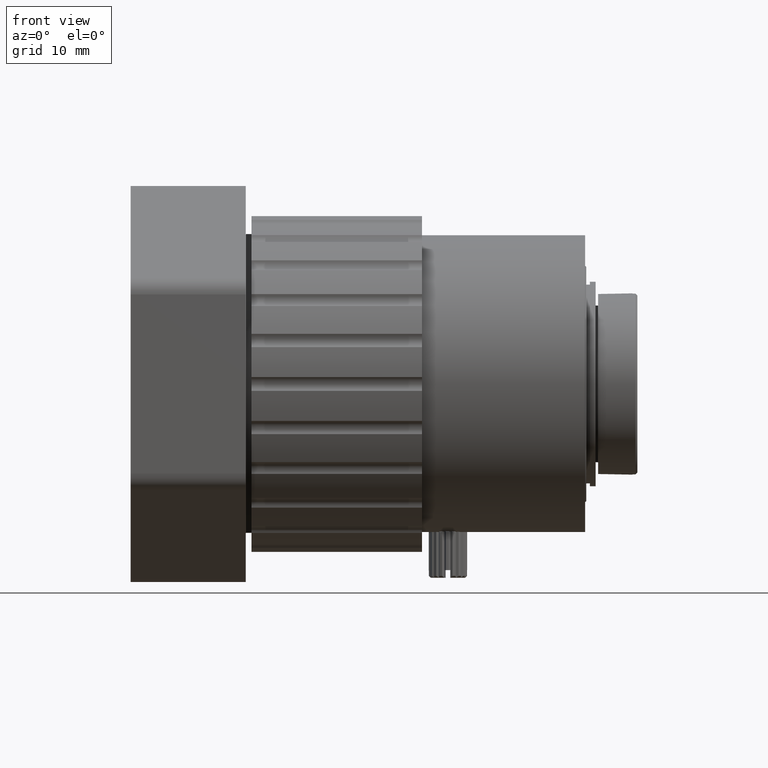
[diagram: clean part render]
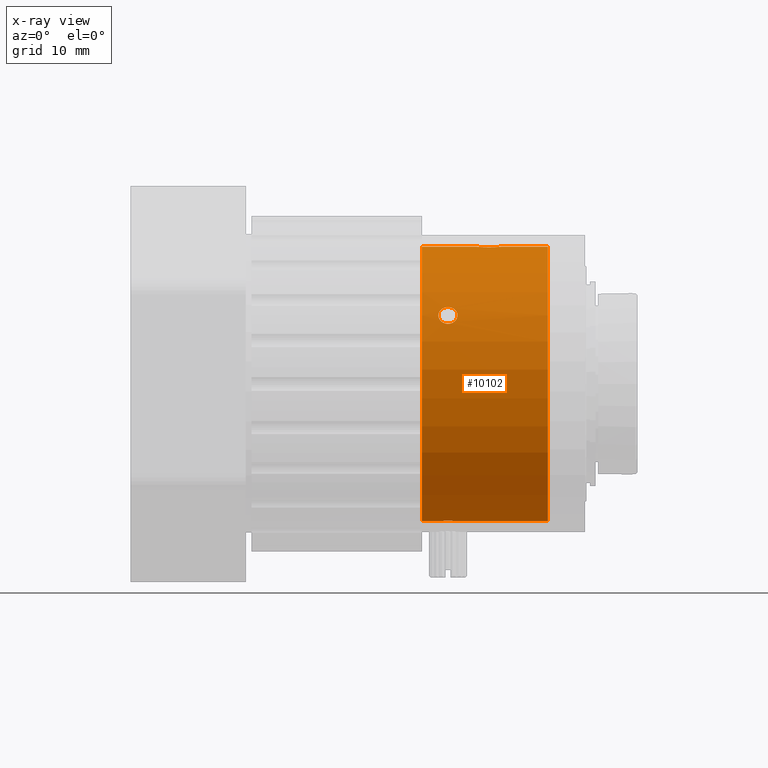
[diagram: x-ray — body ghosted, one internal face saturated and labeled with its STEP entity id]
A machine part, front view, then the same camera in x-ray: the body is ghosted and one INTERNAL B-rep face — a face not visible from any outside direction — is saturated and labeled: STEP entity #10102.
In plain terms, the highlighted cylindrical surface (bore or boss wall) has radius 14.3 mm, axis along (1, -0, -0).
Its self-contained STEP definition (entity closure, byte-faithful):
#196 = DIRECTION ( 'NONE',  ( -1.000000000000000000, 0.000000000000000000, 0.000000000000000000 ) ) ;
#258 = CARTESIAN_POINT ( 'NONE',  ( 5.379468277203178772, -13.16884385282026670, 6.923156298813247567 ) ) ;
#328 = CARTESIAN_POINT ( 'NONE',  ( 5.204576035844993953, -12.72139867896818721, 7.676032751049668867 ) ) ;
#428 = CARTESIAN_POINT ( 'NONE',  ( 3.901234527884420267, 11.26844547094540339, 7.893239898439635027 ) ) ;
#479 = CARTESIAN_POINT ( 'NONE',  ( 3.431012687136103523, -12.90798527395345729, 7.374976602162581329 ) ) ;
#496 = CARTESIAN_POINT ( 'NONE',  ( 4.909581562678975608, 11.26854786452263468, 7.893085600890390907 ) ) ;
#510 = CARTESIAN_POINT ( 'NONE',  ( 9.955240857465145865, -0.4906420756265741367, 14.29999902657050370 ) ) ;
#546 = CARTESIAN_POINT ( 'NONE',  ( 5.205249682252039101, -1.270204570349172224, -14.28710198690048117 ) ) ;
#571 = CARTESIAN_POINT ( 'NONE',  ( 4.143400098509533613, 11.21262688191538182, 7.976924040407781469 ) ) ;
#586 = CARTESIAN_POINT ( 'NONE',  ( 9.334485307254633213, -1.748137345738201454, 14.25836017462261296 ) ) ;
#626 = CARTESIAN_POINT ( 'NONE',  ( 3.431269714888211642, -0.9177104167545876434, -14.29811461411115303 ) ) ;
#699 = CARTESIAN_POINT ( 'NONE',  ( 3.405240694508658184, -0.7880301417158921407, -14.29999897428369593 ) ) ;
#777 = FACE_BOUND ( 'NONE', #3971, .T. ) ;
#803 = CARTESIAN_POINT ( 'NONE',  ( 7.487880130730617978, -0.9835753223944639911, 14.29704577586842795 ) ) ;
#1103 = VERTEX_POINT ( 'NONE', #6443 ) ;
#1282 = ORIENTED_EDGE ( 'NONE', *, *, #1870, .T. ) ;
#1445 = CARTESIAN_POINT ( 'NONE',  ( 3.790905632338021469, -12.62089581533662397, 7.831783895667679296 ) ) ;
#1501 = CARTESIAN_POINT ( 'NONE',  ( 5.405240452726167710, -0.6558685446019785203, -14.29999899119156836 ) ) ;
#1537 = CARTESIAN_POINT ( 'NONE',  ( 4.537400432827348062, 11.19797613472997178, 7.998520954923340476 ) ) ;
#1594 = CARTESIAN_POINT ( 'NONE',  ( 5.019576137372149027, -13.42090567771263387, 6.446126244587553344 ) ) ;
#1616 = CARTESIAN_POINT ( 'NONE',  ( 4.909247421888311536, 12.14203445271126114, 6.380139474742825278 ) ) ;
#1630 = CARTESIAN_POINT ( 'NONE',  ( 7.455240452726275002, -0.6558685446028668098, 14.29999899119120599 ) ) ;
#1702 = CARTESIAN_POINT ( 'NONE',  ( 9.796981301013627075, -0.02542435383893685077, 14.28689783919258538 ) ) ;
#1763 = CARTESIAN_POINT ( 'NONE',  ( 3.790905632337978393, 12.10916890136377511, 6.446125625595678699 ) ) ;
#1777 = CARTESIAN_POINT ( 'NONE',  ( 7.938729434619014924, -1.656962380870725671, 14.26539272616391862 ) ) ;
#1816 = CARTESIAN_POINT ( 'NONE',  ( 5.278829574628004728, -0.1518623390390928252, -14.29162763592430352 ) ) ;
#1840 = CARTESIAN_POINT ( 'NONE',  ( 5.378852418894257248, 11.85801998367461785, 6.921491741998055502 ) ) ;
#1870 = EDGE_CURVE ( 'NONE', #3375, #3375, #13553, .T. ) ;
#1890 = CARTESIAN_POINT ( 'NONE',  ( 3.605929683529980778, -1.270775103604008915, -14.28707056955352961 ) ) ;
#1924 = CARTESIAN_POINT ( 'NONE',  ( 8.867472202385823010, 0.5942453597764111306, 14.24525136272765913 ) ) ;
#1955 = CARTESIAN_POINT ( 'NONE',  ( 5.379211612575280910, -0.3940281563246207930, -14.29811464320481385 ) ) ;
#2400 = CARTESIAN_POINT ( 'NONE',  ( 1.705240452726131117, -0.6558685446018674980, -14.29999899119156836 ) ) ;
#2486 = CARTESIAN_POINT ( 'NONE',  ( 3.900900425848941921, -12.58028459654018327, 7.893086139762820252 ) ) ;
#2650 = CARTESIAN_POINT ( 'NONE',  ( 5.279380598283886172, 11.46955529546316122, 7.581473530961070573 ) ) ;
#2710 = CARTESIAN_POINT ( 'NONE',  ( 4.273082523372662145, -12.50971308652172276, 7.998521158568538070 ) ) ;
#2895 = CARTESIAN_POINT ( 'NONE',  ( 9.471752490989267415, 0.3452245581656235851, 14.26539278048020698 ) ) ;
#3002 = CARTESIAN_POINT ( 'NONE',  ( 5.018444064086059697, -1.456746095088057746, -14.27786003173283191 ) ) ;
#3022 = B_SPLINE_CURVE_WITH_KNOTS ( 'NONE', 3,
 ( #9680, #7147, #14266, #8407, #10663, #6018, #10741, #3771, #9378, #4972, #479, #11713, #12769, #1445, #2486, #12987, #2710, #10588, #14189, #8338, #13967, #328, #3695, #7295, #7069, #3916, #258, #11862, #9458, #1594, #12846, #8482, #8262, #12918 ),
 .UNSPECIFIED., .T., .F.,
 ( 4, 2, 2, 2, 2, 2, 2, 2, 2, 2, 2, 2, 2, 2, 2, 2, 4 ),
 ( 0.000000000000000000, 0.0003908431693535636010, 0.0007816863387071260093, 0.001172529508060688418, 0.001563372677414250718, 0.001954215846767813018, 0.002345059016121375534, 0.002735902185474939352, 0.003126745354828504471, 0.003517588524182069156, 0.003908431693535634709, 0.004299274862889199827, 0.004690118032242764079, 0.005080961201596330065, 0.005471804370949894317, 0.005862647540303459436, 0.006253490709657024554 ),
 .UNSPECIFIED. ) ;
#3040 = CARTESIAN_POINT ( 'NONE',  ( 8.075994706923721012, 0.4363997805401900187, 14.25836021190934844 ) ) ;
#3052 = CIRCLE ( 'NONE', #3289, 14.29999899119138718 ) ;
#3289 = AXIS2_PLACEMENT_3D ( 'NONE', #10293, #196, #8053 ) ;
#3322 = EDGE_CURVE ( 'NONE', #12609, #12609, #3052, .T. ) ;
#3375 = VERTEX_POINT ( 'NONE', #2400 ) ;
#3695 = CARTESIAN_POINT ( 'NONE',  ( 5.279076859773868868, -12.78111518291682103, 7.581744389829351505 ) ) ;
#3771 = CARTESIAN_POINT ( 'NONE',  ( 3.431628548245657218, -13.16975722093703993, 6.921491476364134421 ) ) ;
#3856 = CARTESIAN_POINT ( 'NONE',  ( 3.900900425848905950, 12.14195259266094773, 6.380304156391729542 ) ) ;
#3881 = DIRECTION ( 'NONE',  ( 1.000000000000000000, -0.000000000000000000, -0.000000000000000000 ) ) ;
#3916 = CARTESIAN_POINT ( 'NONE',  ( 5.405330382000570921, -13.10492142160905438, 7.037618470813432836 ) ) ;
#3971 = EDGE_LOOP ( 'NONE', ( #9498 ) ) ;
#4018 = CARTESIAN_POINT ( 'NONE',  ( 4.273080472625653492, 11.19797613472992381, 7.998520954923416859 ) ) ;
#4031 = CARTESIAN_POINT ( 'NONE',  ( 8.376733445822594604, 0.5611291748431413984, 14.24825612408527498 ) ) ;
#4091 = ORIENTED_EDGE ( 'NONE', *, *, #3322, .T. ) ;
#4130 = CARTESIAN_POINT ( 'NONE',  ( 3.792036231608124197, 0.1450085674146674442, -14.27786005768240152 ) ) ;
#4156 = CARTESIAN_POINT ( 'NONE',  ( 5.019576137372164126, 11.30915910576808869, 7.831783315231526821 ) ) ;
#4210 = CARTESIAN_POINT ( 'NONE',  ( 5.204551888072715293, -0.04096281819782821715, -14.28707060664414819 ) ) ;
#4247 = CARTESIAN_POINT ( 'NONE',  ( 7.455240452726139999, -0.4906386893896078627, 14.29999899119121309 ) ) ;
#4361 = CYLINDRICAL_SURFACE ( 'NONE', #14284, 14.29999899119138718 ) ;
#4533 = ORIENTED_EDGE ( 'NONE', *, *, #13524, .T. ) ;
#4543 = ORIENTED_EDGE ( 'NONE', *, *, #4939, .T. ) ;
#4939 = EDGE_CURVE ( 'NONE', #5854, #5854, #3022, .T. ) ;
#4972 = CARTESIAN_POINT ( 'NONE',  ( 3.405150523346470504, -12.97515128470723234, 7.262386941247298111 ) ) ;
#5061 = CARTESIAN_POINT ( 'NONE',  ( 4.405240452726500777, 11.19797613472994868, 7.998520954923378667 ) ) ;
#5075 = CARTESIAN_POINT ( 'NONE',  ( 9.473854992877230430, -1.655015890511251309, 14.26551814509887706 ) ) ;
#5100 = B_SPLINE_CURVE_WITH_KNOTS ( 'NONE', 3,
 ( #6234, #5263, #1955, #1816, #4210, #13357, #13281, #14407, #7585, #8696, #14263, #10959, #4130, #11027, #7369, #10885, #9973, #699, #626, #9821, #1890, #5195, #5411, #9758, #12225, #8554, #6452, #10806, #3002, #546, #5118, #12156, #13138, #8623 ),
 .UNSPECIFIED., .T., .F.,
 ( 4, 2, 2, 2, 2, 2, 2, 2, 2, 2, 2, 2, 2, 2, 2, 2, 4 ),
 ( 0.000000000000000000, 0.0003908431836772340517, 0.0007816863673544681033, 0.001172529551031702318, 0.001563372734708936207, 0.001954215918386170096, 0.002345059102063405503, 0.002735902285740641343, 0.003126745469417876750, 0.003517588653095112591, 0.003908431836772347130, 0.004299275020449582971, 0.004690118204126817944, 0.005080961387804053785, 0.005471804571481289625, 0.005862647755158524598, 0.006253490938835760439 ),
 .UNSPECIFIED. ) ;
#5118 = CARTESIAN_POINT ( 'NONE',  ( 5.278644732670628059, -1.160209966615290078, -14.29161612436701390 ) ) ;
#5140 = CARTESIAN_POINT ( 'NONE',  ( 3.431012687136053785, 11.85710690986276106, 6.923156036669144697 ) ) ;
#5154 = CARTESIAN_POINT ( 'NONE',  ( 8.379137472481291482, -1.873648131807942541, 14.24819022249948297 ) ) ;
#5166 = CARTESIAN_POINT ( 'NONE',  ( 1.705240452726131117, -0.6558685446018674980, -1.797607201980966352E-13 ) ) ;
#5187 = EDGE_LOOP ( 'NONE', ( #6334 ) ) ;
#5195 = CARTESIAN_POINT ( 'NONE',  ( 3.790366538057439616, -1.455204425891333253, -14.27793954618767103 ) ) ;
#5220 = CARTESIAN_POINT ( 'NONE',  ( 5.206117675787486299, 11.41056557034658070, 7.674626005250356542 ) ) ;
#5263 = CARTESIAN_POINT ( 'NONE',  ( 5.405240452726181921, -0.5237085831804311198, -14.29999899119157014 ) ) ;
#5286 = CARTESIAN_POINT ( 'NONE',  ( 5.405150045765169331, 11.79386455973248360, 7.036415060675202504 ) ) ;
#5348 = FACE_OUTER_BOUND ( 'NONE', #12805, .T. ) ;
#5411 = CARTESIAN_POINT ( 'NONE',  ( 3.901880782617399124, -1.529705079205374574, -14.27336260559152592 ) ) ;
#5637 = CARTESIAN_POINT ( 'NONE',  ( 24.16039886190435482, -0.6558685446018674980, -1.797607201980966352E-13 ) ) ;
#5778 = FACE_BOUND ( 'NONE', #11972, .T. ) ;
#5854 = VERTEX_POINT ( 'NONE', #13951 ) ;
#6018 = CARTESIAN_POINT ( 'NONE',  ( 3.605905319555552158, -13.33627326093059473, 6.611038681921219684 ) ) ;
#6190 = CARTESIAN_POINT ( 'NONE',  ( 4.143140340563409296, 12.18657083976280475, 6.290012531653618844 ) ) ;
#6203 = CARTESIAN_POINT ( 'NONE',  ( 7.936624891140799498, 0.3432780583976143829, 14.26551819976294233 ) ) ;
#6234 = CARTESIAN_POINT ( 'NONE',  ( 5.405240452726167710, -0.6558685446019785203, -14.29999899119157192 ) ) ;
#6271 = CARTESIAN_POINT ( 'NONE',  ( 9.955240047979360796, -0.8211011375262079470, 14.29999895581125102 ) ) ;
#6329 = CARTESIAN_POINT ( 'NONE',  ( 5.020146676126045371, 12.10884655312035818, 6.446746830182760846 ) ) ;
#6334 = ORIENTED_EDGE ( 'NONE', *, *, #7837, .T. ) ;
#6345 = CARTESIAN_POINT ( 'NONE',  ( 7.705209679964446501, -1.423765974878053564, 14.27984425815915337 ) ) ;
#6408 = CARTESIAN_POINT ( 'NONE',  ( 4.405240452726500777, 11.19797613472994868, 7.998520954923378667 ) ) ;
#6443 = CARTESIAN_POINT ( 'NONE',  ( 4.405240452726499889, 11.19797613472994868, 7.998520954923380444 ) ) ;
#6452 = CARTESIAN_POINT ( 'NONE',  ( 4.666098777483088433, -1.630096381221073143, -14.26686251962293106 ) ) ;
#6835 = FACE_BOUND ( 'NONE', #5187, .T. ) ;
#6911 = FACE_OUTER_BOUND ( 'NONE', #13895, .T. ) ;
#7069 = CARTESIAN_POINT ( 'NONE',  ( 5.405150045765118705, -12.97444929088538323, 7.263577608351696746 ) ) ;
#7147 = CARTESIAN_POINT ( 'NONE',  ( 4.273080472625657045, -13.50971322393380447, 6.266470147354330500 ) ) ;
#7231 = CARTESIAN_POINT ( 'NONE',  ( 3.604363674099793524, 12.02376988422992632, 6.612524925620954619 ) ) ;
#7295 = CARTESIAN_POINT ( 'NONE',  ( 5.378852418894211063, -12.90700048939484823, 7.376599494614716868 ) ) ;
#7317 = CARTESIAN_POINT ( 'NONE',  ( 4.273082523372657704, 12.19797624238598033, 6.266469926529448564 ) ) ;
#7357 = VERTEX_POINT ( 'NONE', #1501 ) ;
#7369 = CARTESIAN_POINT ( 'NONE',  ( 3.531835536169917855, -0.1515281911296176565, -14.29161616367502319 ) ) ;
#7392 = CARTESIAN_POINT ( 'NONE',  ( 3.790335073249629261, 11.30953516078298371, 7.831194697548544248 ) ) ;
#7460 = CARTESIAN_POINT ( 'NONE',  ( 3.405150523346419433, 11.79318440868353335, 7.037618338710415422 ) ) ;
#7475 = CARTESIAN_POINT ( 'NONE',  ( 8.541258153186349844, 0.5940169381345271615, 14.24527140637407818 ) ) ;
#7585 = CARTESIAN_POINT ( 'NONE',  ( 4.536392986313871667, 0.3440410390356044568, -14.26499744061672992 ) ) ;
#7621 = CARTESIAN_POINT ( 'NONE',  ( 9.797200557672731236, -1.285920444905047422, 14.28691488641308815 ) ) ;
#7837 = EDGE_CURVE ( 'NONE', #7357, #7357, #5100, .T. ) ;
#8053 = DIRECTION ( 'NONE',  ( 0.000000000000000000, 0.000000000000000000, -1.000000000000000000 ) ) ;
#8262 = CARTESIAN_POINT ( 'NONE',  ( 4.537400432827343622, -13.50971322393378493, 6.266470147354413101 ) ) ;
#8287 = AXIS2_PLACEMENT_3D ( 'NONE', #5166, #3881, #12052 ) ;
#8338 = CARTESIAN_POINT ( 'NONE',  ( 4.909247421888293772, -12.58018290807384432, 7.893239373470386511 ) ) ;
#8407 = CARTESIAN_POINT ( 'NONE',  ( 3.901234527884444692, -13.45377182258930482, 6.380138910946641317 ) ) ;
#8482 = CARTESIAN_POINT ( 'NONE',  ( 4.667342030979304113, -13.49830774751818119, 6.290012903053511018 ) ) ;
#8514 = CARTESIAN_POINT ( 'NONE',  ( 9.033746957430413005, -1.872866365985853099, 14.24825611455474039 ) ) ;
#8554 = CARTESIAN_POINT ( 'NONE',  ( 4.535010396135630728, -1.655958483075582466, -14.26498479744073755 ) ) ;
#8578 = CARTESIAN_POINT ( 'NONE',  ( 3.431628548245608812, 11.59526324417471166, 7.376599755654289936 ) ) ;
#8591 = CARTESIAN_POINT ( 'NONE',  ( 7.706125783100715942, 0.1127885263574945063, 14.27979235665973157 ) ) ;
#8623 = CARTESIAN_POINT ( 'NONE',  ( 5.405240452726167710, -0.6558685446019785203, -14.29999899119157192 ) ) ;
#8696 = CARTESIAN_POINT ( 'NONE',  ( 4.275470358820136596, 0.3442213939757369778, -14.26498479743345449 ) ) ;
#8738 = CARTESIAN_POINT ( 'NONE',  ( 7.613279309918621784, -0.02581836840534008221, 14.28691496646231940 ) ) ;
#9001 = FACE_BOUND ( 'NONE', #10125, .T. ) ;
#9296 = CARTESIAN_POINT ( 'NONE',  ( 14.82728844745895280, -0.6558685446018674980, -14.29999899119156836 ) ) ;
#9378 = CARTESIAN_POINT ( 'NONE',  ( 3.405330859792505382, -13.10560172520074751, 7.036414928566418148 ) ) ;
#9458 = CARTESIAN_POINT ( 'NONE',  ( 5.206117675787443666, -13.33550668716775611, 6.612525474011058613 ) ) ;
#9498 = ORIENTED_EDGE ( 'NONE', *, *, #13231, .T. ) ;
#9680 = CARTESIAN_POINT ( 'NONE',  ( 4.405240452726499889, -13.50971322393379381, 6.266470147354371356 ) ) ;
#9758 = CARTESIAN_POINT ( 'NONE',  ( 4.142483885062464566, -1.629480496484888130, -14.26690401338205660 ) ) ;
#9821 = CARTESIAN_POINT ( 'NONE',  ( 3.531651950988140776, -1.159875780470720930, -14.29162759766932211 ) ) ;
#9845 = CARTESIAN_POINT ( 'NONE',  ( 5.405330382000622436, 11.66341427176894818, 7.262386809136921251 ) ) ;
#9859 = CARTESIAN_POINT ( 'NONE',  ( 9.705272369136036303, 0.1120274583649891048, 14.27984433775147011 ) ) ;
#9973 = CARTESIAN_POINT ( 'NONE',  ( 3.405240210947016788, -0.5237106064050038867, -14.29999900809920099 ) ) ;
#10102 = ADVANCED_FACE ( 'NONE', ( #777, #5348, #6835, #6911, #9001, #5778 ), #4361, .T. ) ;
#10125 = EDGE_LOOP ( 'NONE', ( #4533 ) ) ;
#10240 = VERTEX_POINT ( 'NONE', #11285 ) ;
#10275 = DIRECTION ( 'NONE',  ( 1.000000000000000000, -0.000000000000000000, -0.000000000000000000 ) ) ;
#10293 = CARTESIAN_POINT ( 'NONE',  ( 14.82728844745895280, -0.6558685446018674980, -1.797607201980966352E-13 ) ) ;
#10588 = CARTESIAN_POINT ( 'NONE',  ( 4.537402090768973828, -12.50971336134781531, 7.998520751275028928 ) ) ;
#10663 = CARTESIAN_POINT ( 'NONE',  ( 3.790335073249666120, -13.42058394735349758, 6.446746226625148068 ) ) ;
#10713 = B_SPLINE_CURVE_WITH_KNOTS ( 'NONE', 3,
 ( #1630, #4247, #12041, #8738, #8591, #6203, #3040, #4031, #7475, #1924, #14223, #10773, #2895, #9859, #1702, #13099, #510, #6271, #13175, #7621, #11064, #5075, #586, #8514, #10845, #13320, #5154, #12117, #1777, #6345, #12193, #803, #10921, #10996 ),
 .UNSPECIFIED., .T., .F.,
 ( 4, 2, 2, 2, 2, 2, 2, 2, 2, 2, 2, 2, 2, 2, 2, 2, 4 ),
 ( 0.000000000000000000, 0.0004886359303706381283, 0.0009772718607412762565, 0.001465907791111914493, 0.001954543721482552513, 0.002443179651853190533, 0.002931815582223828986, 0.003420451512594467006, 0.003909087442965105026, 0.004397723373335743480, 0.004886359303706381066, 0.005374995234077019519, 0.005863631164447657973, 0.006352267094818295559, 0.006840903025188934013, 0.007329538955559571599, 0.007818174885930210052 ),
 .UNSPECIFIED. ) ;
#10741 = CARTESIAN_POINT ( 'NONE',  ( 3.531404333980265875, -13.28447536469712631, 6.709898944435345847 ) ) ;
#10759 = CARTESIAN_POINT ( 'NONE',  ( 5.379468277203226734, 11.59624833865004945, 7.374976344437593312 ) ) ;
#10773 = CARTESIAN_POINT ( 'NONE',  ( 9.334101019729969195, 0.4367726364153042273, 14.25833254673735695 ) ) ;
#10806 = CARTESIAN_POINT ( 'NONE',  ( 4.908276927189557881, -1.530008835744063767, -14.27334455489907050 ) ) ;
#10828 = CARTESIAN_POINT ( 'NONE',  ( 3.405330859792456977, 11.66271212540435265, 7.263577740453129650 ) ) ;
#10845 = CARTESIAN_POINT ( 'NONE',  ( 8.869222500241136231, -1.905754027525022654, 14.24527140635769662 ) ) ;
#10870 = B_SPLINE_CURVE_WITH_KNOTS ( 'NONE', 3,
 ( #6408, #4018, #571, #428, #7392, #13006, #14134, #8578, #10828, #7460, #5140, #12024, #7231, #1763, #3856, #6190, #7317, #11804, #14364, #1616, #6329, #14432, #10909, #1840, #5286, #9845, #10759, #2650, #5220, #4156, #496, #12932, #1537, #5061 ),
 .UNSPECIFIED., .T., .F.,
 ( 4, 2, 2, 2, 2, 2, 2, 2, 2, 2, 2, 2, 2, 2, 2, 2, 4 ),
 ( 0.000000000000000000, 0.0003908431693535775330, 0.0007816863387071550659, 0.001172529508060735689, 0.001563372677414316420, 0.001954215846767897152, 0.002345059016121477883, 0.002735902185475058181, 0.003126745354828637611, 0.003517588524182217041, 0.003908431693535796905, 0.004299274862889375902, 0.004690118032242955766, 0.005080961201596535630, 0.005471804370950115494, 0.005862647540303691888, 0.006253490709657268283 ),
 .UNSPECIFIED. ) ;
#10885 = CARTESIAN_POINT ( 'NONE',  ( 3.431331413900476246, -0.3937683261762376374, -14.29811019811564599 ) ) ;
#10909 = CARTESIAN_POINT ( 'NONE',  ( 5.279076859773907948, 11.97273802114817975, 6.709899421017571086 ) ) ;
#10921 = CARTESIAN_POINT ( 'NONE',  ( 7.455240452726409117, -0.8210983998161257569, 14.29999899119119888 ) ) ;
#10959 = CARTESIAN_POINT ( 'NONE',  ( 3.902203436274282122, 0.2182714582633493716, -14.27334457295904535 ) ) ;
#10996 = CARTESIAN_POINT ( 'NONE',  ( 7.455240452726275002, -0.6558685446028668098, 14.29999899119120599 ) ) ;
#11027 = CARTESIAN_POINT ( 'NONE',  ( 3.605230540002303918, -0.04153337151433584423, -14.28710202491820169 ) ) ;
#11064 = CARTESIAN_POINT ( 'NONE',  ( 9.704354007896412782, -1.424527008449405496, 14.27979227905430015 ) ) ;
#11252 = DIRECTION ( 'NONE',  ( 0.000000000000000000, 0.000000000000000000, -1.000000000000000000 ) ) ;
#11285 = CARTESIAN_POINT ( 'NONE',  ( 7.455240452726275002, -0.6558685446028666988, 14.29999899119120599 ) ) ;
#11713 = CARTESIAN_POINT ( 'NONE',  ( 3.531100599367370307, -12.78129209415600442, 7.581473997582558688 ) ) ;
#11804 = CARTESIAN_POINT ( 'NONE',  ( 4.537402090768976493, 12.19797602707247819, 6.266470368182577744 ) ) ;
#11862 = CARTESIAN_POINT ( 'NONE',  ( 5.279380598283836434, -13.28432914056615921, 6.710188311668909833 ) ) ;
#11972 = EDGE_LOOP ( 'NONE', ( #4543 ) ) ;
#12024 = CARTESIAN_POINT ( 'NONE',  ( 3.531100599367322346, 11.97259231021306292, 6.710187826768326147 ) ) ;
#12041 = CARTESIAN_POINT ( 'NONE',  ( 7.487792671749908813, -0.3285105409990585756, 14.29705351535509728 ) ) ;
#12052 = DIRECTION ( 'NONE',  ( 0.000000000000000000, 0.000000000000000000, -1.000000000000000000 ) ) ;
#12117 = CARTESIAN_POINT ( 'NONE',  ( 8.076380792898076422, -1.748510208177491698, 14.25833250890735293 ) ) ;
#12156 = CARTESIAN_POINT ( 'NONE',  ( 5.379149084719414553, -0.9179702094437123261, -14.29811017000194440 ) ) ;
#12193 = CARTESIAN_POINT ( 'NONE',  ( 7.613500669394778875, -1.286314522677579397, 14.28689775697357334 ) ) ;
#12225 = CARTESIAN_POINT ( 'NONE',  ( 4.274088069632931308, -1.655778128343227573, -14.26499744060944508 ) ) ;
#12609 = VERTEX_POINT ( 'NONE', #9296 ) ;
#12769 = CARTESIAN_POINT ( 'NONE',  ( 3.604363674099835713, -12.72230232776353631, 7.674626527358902273 ) ) ;
#12805 = EDGE_LOOP ( 'NONE', ( #4091 ) ) ;
#12846 = CARTESIAN_POINT ( 'NONE',  ( 4.909581562678948963, -13.45368939378052708, 6.380304735160330587 ) ) ;
#12918 = CARTESIAN_POINT ( 'NONE',  ( 4.405240452726499889, -13.50971322393379381, 6.266470147354371356 ) ) ;
#12932 = CARTESIAN_POINT ( 'NONE',  ( 4.667342030979320988, 11.21266202103270793, 7.976872144755647653 ) ) ;
#12987 = CARTESIAN_POINT ( 'NONE',  ( 4.143140340563426172, -12.52439887931893736, 7.976872487594408589 ) ) ;
#13006 = CARTESIAN_POINT ( 'NONE',  ( 3.605905319555515298, 11.40966125750804316, 7.676033273647759891 ) ) ;
#13099 = CARTESIAN_POINT ( 'NONE',  ( 9.922601455715550856, -0.3281641871593434234, 14.29704583469275470 ) ) ;
#13138 = CARTESIAN_POINT ( 'NONE',  ( 5.405240452726152611, -0.7880285060235265870, -14.29999899119157192 ) ) ;
#13175 = CARTESIAN_POINT ( 'NONE',  ( 9.922687527412263009, -0.9832290312352146566, 14.29705345448770792 ) ) ;
#13231 = EDGE_CURVE ( 'NONE', #10240, #10240, #10713, .T. ) ;
#13281 = CARTESIAN_POINT ( 'NONE',  ( 4.908600655493454035, 0.2179677055694232424, -14.27336262339710515 ) ) ;
#13320 = CARTESIAN_POINT ( 'NONE',  ( 8.543008954933544175, -1.905982448793495099, 14.24525136274403536 ) ) ;
#13357 = CARTESIAN_POINT ( 'NONE',  ( 5.020114977802530909, 0.1434668927786824921, -14.27793957229639155 ) ) ;
#13524 = EDGE_CURVE ( 'NONE', #1103, #1103, #10870, .T. ) ;
#13553 = CIRCLE ( 'NONE', #8287, 14.29999899119138718 ) ;
#13895 = EDGE_LOOP ( 'NONE', ( #1282 ) ) ;
#13951 = CARTESIAN_POINT ( 'NONE',  ( 4.405240452726499889, -13.50971322393379381, 6.266470147354372244 ) ) ;
#13967 = CARTESIAN_POINT ( 'NONE',  ( 5.020146676126019614, -12.62127262016828055, 7.831194131606452835 ) ) ;
#14134 = CARTESIAN_POINT ( 'NONE',  ( 3.531404333980223686, 11.46937780815335017, 7.581744848389927682 ) ) ;
#14189 = CARTESIAN_POINT ( 'NONE',  ( 4.667082311001605532, -12.52436421059111460, 7.976923684742240894 ) ) ;
#14223 = CARTESIAN_POINT ( 'NONE',  ( 9.031343928376520225, 0.5619109454355214472, 14.24819023165569831 ) ) ;
#14263 = CARTESIAN_POINT ( 'NONE',  ( 4.144381831850749265, 0.3183592339206866573, -14.26686252399537480 ) ) ;
#14266 = CARTESIAN_POINT ( 'NONE',  ( 4.143400098509547824, -13.49833512091260879, 6.289956523859175697 ) ) ;
#14284 = AXIS2_PLACEMENT_3D ( 'NONE', #5637, #10275, #11252 ) ;
#14364 = CARTESIAN_POINT ( 'NONE',  ( 4.667082311001622408, 12.18659784342952435, 6.289956909080695269 ) ) ;
#14407 = CARTESIAN_POINT ( 'NONE',  ( 4.667997320383708626, 0.3177433464215237979, -14.26690401792767560 ) ) ;
#14432 = CARTESIAN_POINT ( 'NONE',  ( 5.204576035845032145, 12.02453588527186135, 6.611039230962690638 ) ) ;